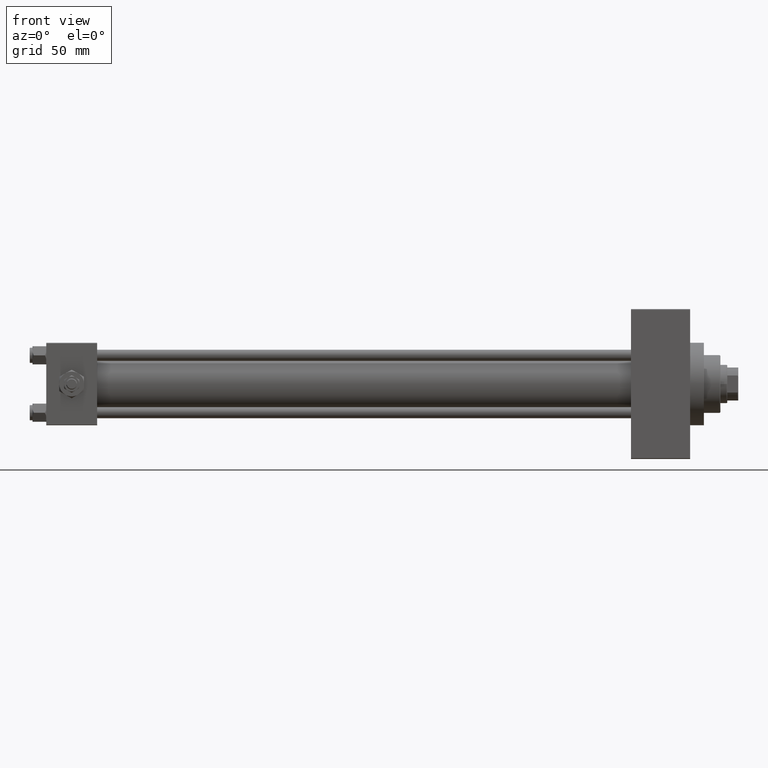
[diagram: clean part render]
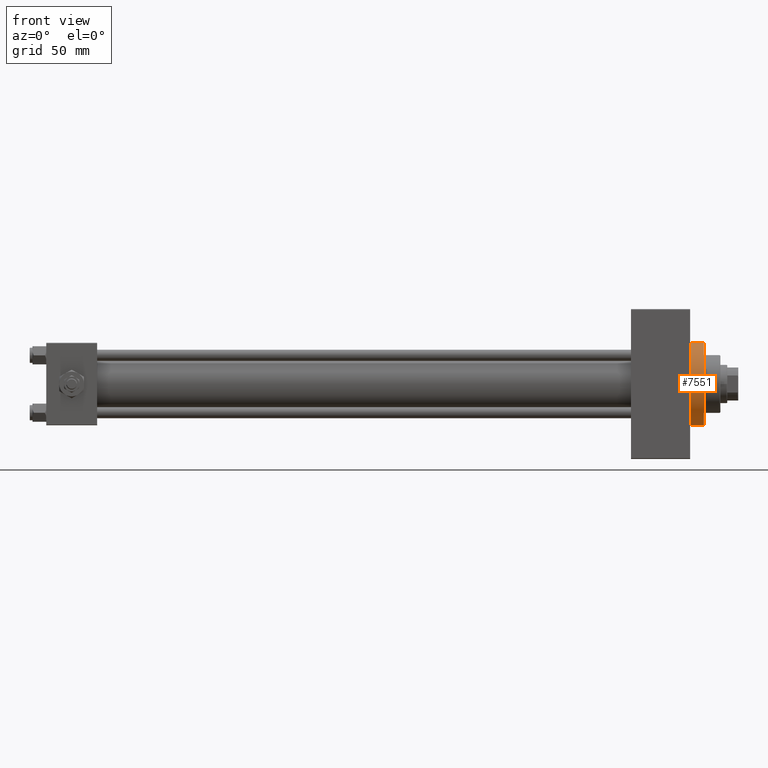
[diagram: same view with one face highlighted and labeled with its STEP entity id]
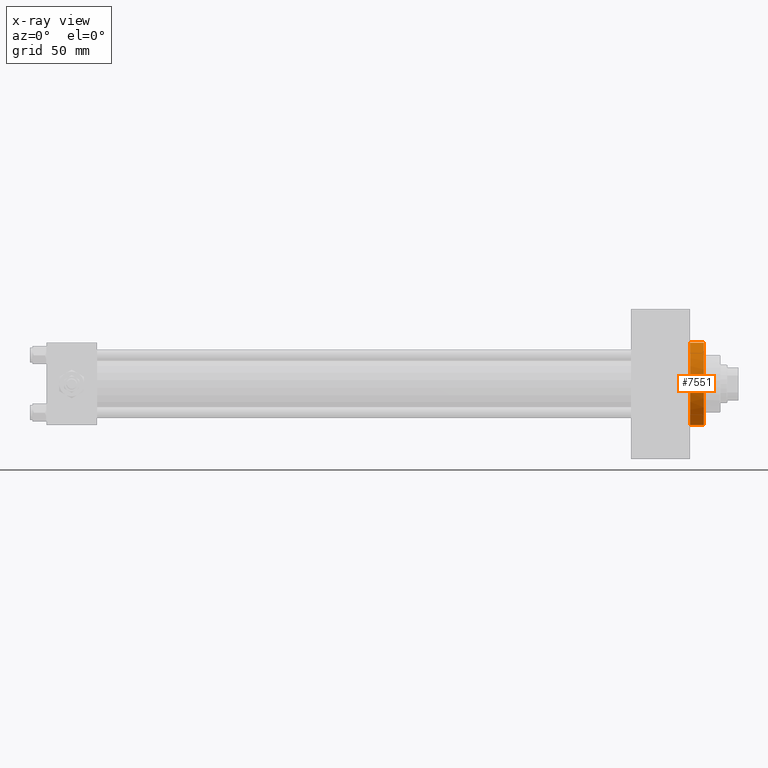
[diagram: x-ray of the same camera — body ghosted, the highlighted face saturated]
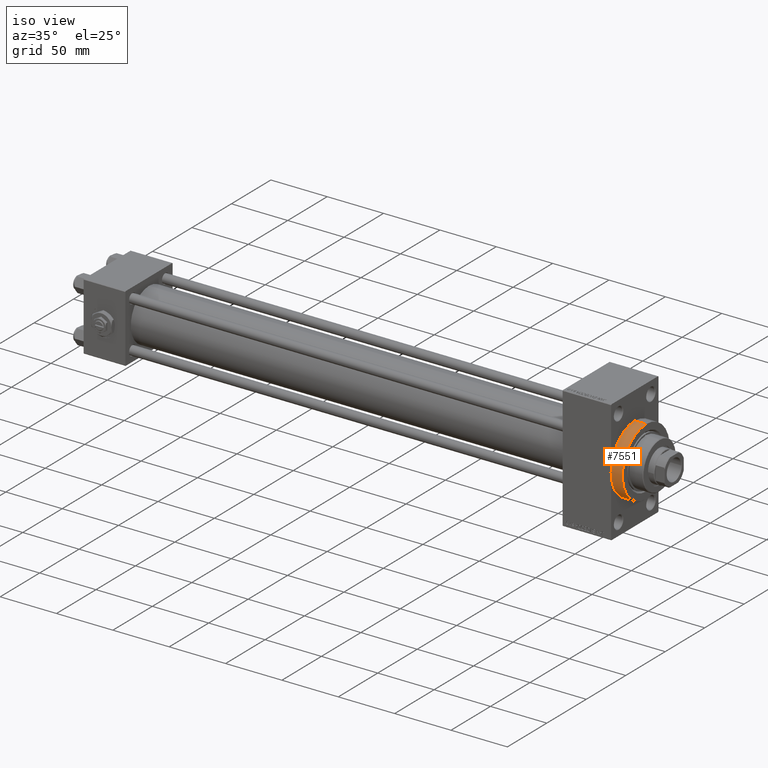
[diagram: same view with one face highlighted and labeled with its STEP entity id]
A machine part, front view. The second image highlights one B-rep face of the part: STEP entity #7551.
The next image is the same camera in x-ray: the body ghosted, the highlighted face saturated — about 0% of this face is hidden behind the body in this view.
A second angle (iso view) of the same face is appended — the face is thin or edge-on in the first view.
In plain terms, the highlighted cylindrical surface (partial cylindrical patch) has radius 30 mm, axis along (-1, -0, -0).
Its self-contained STEP definition (entity closure, byte-faithful):
#166 = VECTOR ( 'NONE', #1895, 1000.000000000000000 ) ;
#1064 = ORIENTED_EDGE ( 'NONE', *, *, #33604, .T. ) ;
#1895 = DIRECTION ( 'NONE',  ( -1.000000000000000000, -0.000000000000000000, -0.000000000000000000 ) ) ;
#3846 = CARTESIAN_POINT ( 'NONE',  ( 478.0000000000000000, 3.673940397442059178E-15, -30.00000000000000000 ) ) ;
#4440 = ORIENTED_EDGE ( 'NONE', *, *, #18588, .F. ) ;
#4527 = CARTESIAN_POINT ( 'NONE',  ( 478.0000000000000000, 0.000000000000000000, 0.000000000000000000 ) ) ;
#5003 = ORIENTED_EDGE ( 'NONE', *, *, #20942, .F. ) ;
#6423 = CARTESIAN_POINT ( 'NONE',  ( 468.0000000000000000, -30.00000000000000000, 0.000000000000000000 ) ) ;
#7214 = VERTEX_POINT ( 'NONE', #35399 ) ;
#7255 = EDGE_LOOP ( 'NONE', ( #5003, #4440, #38085, #44807, #1064 ) ) ;
#7551 = ADVANCED_FACE ( 'NONE', ( #25167 ), #35830, .T. ) ;
#8260 = CARTESIAN_POINT ( 'NONE',  ( 468.0000000000000000, 0.000000000000000000, 0.000000000000000000 ) ) ;
#8488 = DIRECTION ( 'NONE',  ( 0.000000000000000000, 0.000000000000000000, -1.000000000000000000 ) ) ;
#8818 = LINE ( 'NONE', #31884, #166 ) ;
#9137 = AXIS2_PLACEMENT_3D ( 'NONE', #4527, #45421, #8488 ) ;
#9377 = CARTESIAN_POINT ( 'NONE',  ( 468.0000000000000000, 0.000000000000000000, 0.000000000000000000 ) ) ;
#9535 = DIRECTION ( 'NONE',  ( 0.000000000000000000, 0.000000000000000000, 1.000000000000000000 ) ) ;
#9790 = AXIS2_PLACEMENT_3D ( 'NONE', #43982, #10039, #9535 ) ;
#10039 = DIRECTION ( 'NONE',  ( -1.000000000000000000, -0.000000000000000000, -0.000000000000000000 ) ) ;
#10430 = CARTESIAN_POINT ( 'NONE',  ( 478.0000000000000000, 0.000000000000000000, 30.00000000000000000 ) ) ;
#10726 = VERTEX_POINT ( 'NONE', #48940 ) ;
#18588 = EDGE_CURVE ( 'NONE', #43132, #7214, #44755, .T. ) ;
#18964 = DIRECTION ( 'NONE',  ( -1.000000000000000000, -0.000000000000000000, -0.000000000000000000 ) ) ;
#20942 = EDGE_CURVE ( 'NONE', #7214, #44359, #26659, .T. ) ;
#23749 = VERTEX_POINT ( 'NONE', #6423 ) ;
#24520 = DIRECTION ( 'NONE',  ( 1.000000000000000000, 0.000000000000000000, 0.000000000000000000 ) ) ;
#25167 = FACE_OUTER_BOUND ( 'NONE', #7255, .T. ) ;
#25854 = VECTOR ( 'NONE', #18964, 1000.000000000000000 ) ;
#26659 = LINE ( 'NONE', #3846, #25854 ) ;
#30499 = CARTESIAN_POINT ( 'NONE',  ( 468.0000000000000000, 3.673940397442059178E-15, -30.00000000000000000 ) ) ;
#31884 = CARTESIAN_POINT ( 'NONE',  ( 478.0000000000000000, 0.000000000000000000, 30.00000000000000000 ) ) ;
#32739 = AXIS2_PLACEMENT_3D ( 'NONE', #8260, #38513, #45193 ) ;
#33302 = CIRCLE ( 'NONE', #46766, 30.00000000000000000 ) ;
#33604 = EDGE_CURVE ( 'NONE', #23749, #44359, #33302, .T. ) ;
#35399 = CARTESIAN_POINT ( 'NONE',  ( 478.0000000000000000, 3.673940397442059178E-15, -30.00000000000000000 ) ) ;
#35830 = CYLINDRICAL_SURFACE ( 'NONE', #9790, 30.00000000000000000 ) ;
#36675 = EDGE_CURVE ( 'NONE', #43132, #10726, #8818, .T. ) ;
#38085 = ORIENTED_EDGE ( 'NONE', *, *, #36675, .T. ) ;
#38513 = DIRECTION ( 'NONE',  ( 1.000000000000000000, 0.000000000000000000, 0.000000000000000000 ) ) ;
#39669 = EDGE_CURVE ( 'NONE', #10726, #23749, #40639, .T. ) ;
#39874 = DIRECTION ( 'NONE',  ( 0.000000000000000000, 0.000000000000000000, -1.000000000000000000 ) ) ;
#40639 = CIRCLE ( 'NONE', #32739, 30.00000000000000000 ) ;
#43132 = VERTEX_POINT ( 'NONE', #10430 ) ;
#43982 = CARTESIAN_POINT ( 'NONE',  ( 478.0000000000000000, 0.000000000000000000, 0.000000000000000000 ) ) ;
#44359 = VERTEX_POINT ( 'NONE', #30499 ) ;
#44755 = CIRCLE ( 'NONE', #9137, 30.00000000000000000 ) ;
#44807 = ORIENTED_EDGE ( 'NONE', *, *, #39669, .T. ) ;
#45193 = DIRECTION ( 'NONE',  ( 0.000000000000000000, 0.000000000000000000, -1.000000000000000000 ) ) ;
#45421 = DIRECTION ( 'NONE',  ( 1.000000000000000000, 0.000000000000000000, 0.000000000000000000 ) ) ;
#46766 = AXIS2_PLACEMENT_3D ( 'NONE', #9377, #24520, #39874 ) ;
#48940 = CARTESIAN_POINT ( 'NONE',  ( 468.0000000000000000, 0.000000000000000000, 30.00000000000000000 ) ) ;